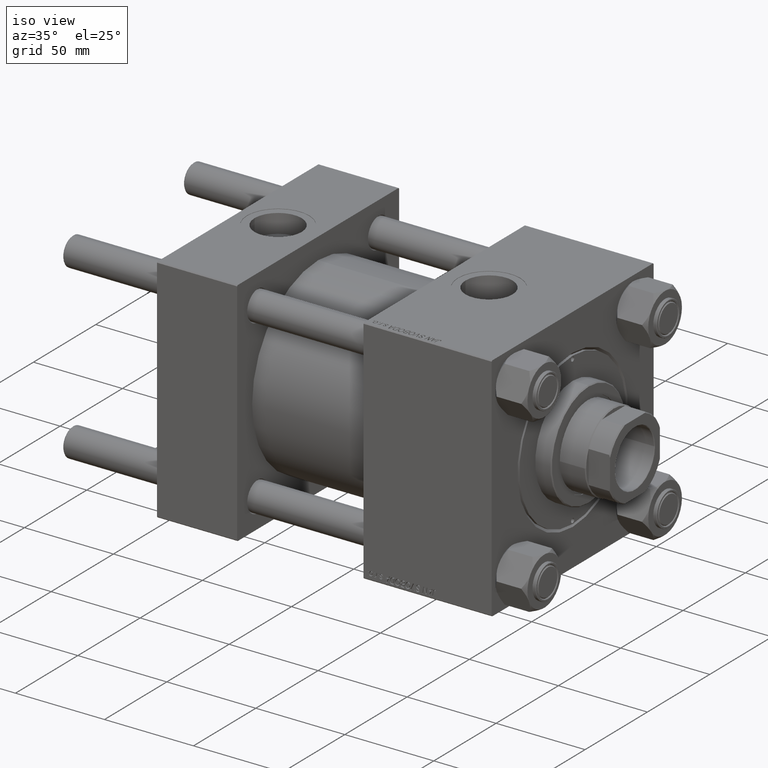
[diagram: clean part render]
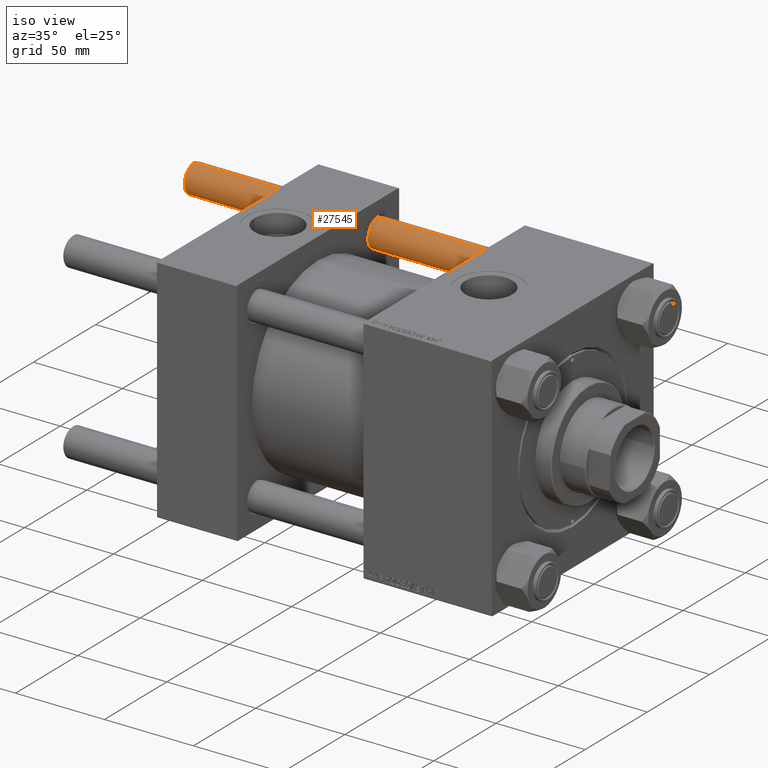
[diagram: same view with one face highlighted and labeled with its STEP entity id]
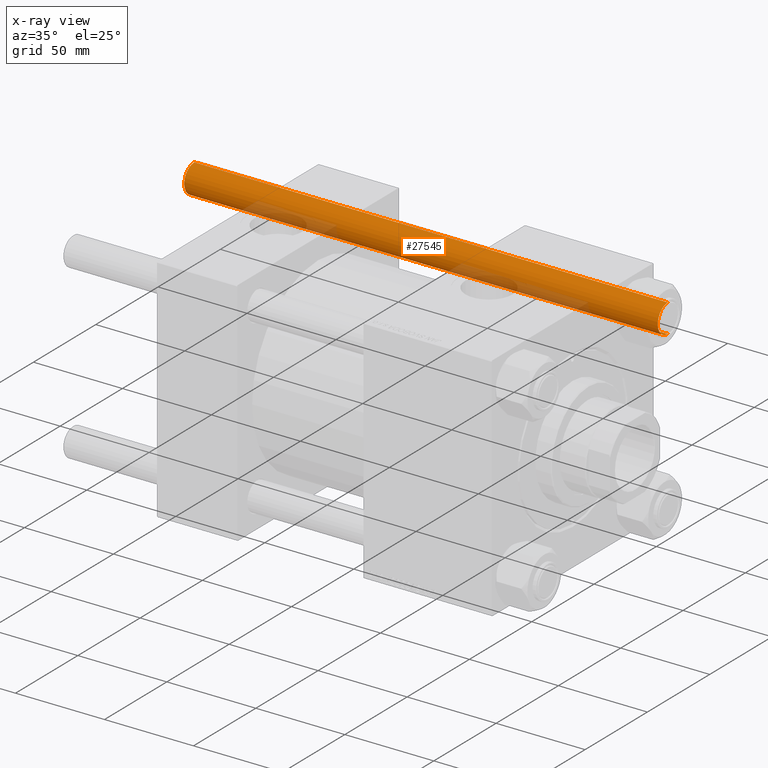
[diagram: x-ray of the same camera — body ghosted, the highlighted face saturated]
A machine part, iso view. The second image highlights one B-rep face of the part: STEP entity #27545.
The next image is the same camera in x-ray: the body ghosted, the highlighted face saturated — about 17% of this face is hidden behind the body in this view.
In plain terms, the highlighted cylindrical surface (edge-blend (fillet) strip) has radius 8 mm, axis along (-1, -0, -0).
Its self-contained STEP definition (entity closure, byte-faithful):
#737 = AXIS2_PLACEMENT_3D ( 'NONE', #40856, #36781, #41110 ) ;
#807 = VECTOR ( 'NONE', #22065, 1000.000000000000000 ) ;
#1186 = CYLINDRICAL_SURFACE ( 'NONE', #43241, 8.000000000000000000 ) ;
#1276 = EDGE_CURVE ( 'NONE', #46252, #44632, #30559, .T. ) ;
#3789 = EDGE_CURVE ( 'NONE', #34205, #46252, #48459, .T. ) ;
#4078 = VERTEX_POINT ( 'NONE', #42905 ) ;
#7635 = ORIENTED_EDGE ( 'NONE', *, *, #22350, .F. ) ;
#9077 = DIRECTION ( 'NONE',  ( -1.000000000000000000, 0.000000000000000000, 0.000000000000000000 ) ) ;
#13530 = ORIENTED_EDGE ( 'NONE', *, *, #1276, .T. ) ;
#20517 = EDGE_CURVE ( 'NONE', #44632, #4078, #42193, .T. ) ;
#20796 = AXIS2_PLACEMENT_3D ( 'NONE', #40737, #32841, #21391 ) ;
#21391 = DIRECTION ( 'NONE',  ( 1.000000000000000000, 0.000000000000000000, 0.000000000000000000 ) ) ;
#22065 = DIRECTION ( 'NONE',  ( -0.000000000000000000, -0.000000000000000000, -1.000000000000000000 ) ) ;
#22312 = CARTESIAN_POINT ( 'NONE',  ( 8.000000000000000000, 9.797174393178825657E-16, 267.0000000000000000 ) ) ;
#22350 = EDGE_CURVE ( 'NONE', #34205, #4078, #33270, .T. ) ;
#27545 = ADVANCED_FACE ( 'NONE', ( #36046 ), #1186, .T. ) ;
#30559 = LINE ( 'NONE', #37949, #32928 ) ;
#32234 = CARTESIAN_POINT ( 'NONE',  ( 0.000000000000000000, 0.000000000000000000, 267.0000000000000000 ) ) ;
#32841 = DIRECTION ( 'NONE',  ( 0.000000000000000000, 0.000000000000000000, -1.000000000000000000 ) ) ;
#32928 = VECTOR ( 'NONE', #38203, 1000.000000000000000 ) ;
#33270 = LINE ( 'NONE', #22312, #807 ) ;
#34205 = VERTEX_POINT ( 'NONE', #50136 ) ;
#36046 = FACE_OUTER_BOUND ( 'NONE', #41747, .T. ) ;
#36403 = CARTESIAN_POINT ( 'NONE',  ( -8.000000000000000000, 0.000000000000000000, 0.5000000000000559552 ) ) ;
#36781 = DIRECTION ( 'NONE',  ( -0.000000000000000000, -0.000000000000000000, 1.000000000000000000 ) ) ;
#37949 = CARTESIAN_POINT ( 'NONE',  ( -8.000000000000000000, 0.000000000000000000, 267.0000000000000000 ) ) ;
#38203 = DIRECTION ( 'NONE',  ( -0.000000000000000000, -0.000000000000000000, -1.000000000000000000 ) ) ;
#40347 = ORIENTED_EDGE ( 'NONE', *, *, #20517, .T. ) ;
#40737 = CARTESIAN_POINT ( 'NONE',  ( 0.000000000000000000, 0.000000000000000000, 266.5000000000000568 ) ) ;
#40856 = CARTESIAN_POINT ( 'NONE',  ( 0.000000000000000000, 0.000000000000000000, 0.5000000000000559552 ) ) ;
#41110 = DIRECTION ( 'NONE',  ( 1.000000000000000000, 0.000000000000000000, 0.000000000000000000 ) ) ;
#41747 = EDGE_LOOP ( 'NONE', ( #7635, #46888, #13530, #40347 ) ) ;
#42193 = CIRCLE ( 'NONE', #737, 8.000000000000000000 ) ;
#42905 = CARTESIAN_POINT ( 'NONE',  ( 8.000000000000000000, 9.797174393178825657E-16, 0.5000000000000559552 ) ) ;
#43241 = AXIS2_PLACEMENT_3D ( 'NONE', #32234, #47772, #9077 ) ;
#44632 = VERTEX_POINT ( 'NONE', #36403 ) ;
#46252 = VERTEX_POINT ( 'NONE', #46319 ) ;
#46319 = CARTESIAN_POINT ( 'NONE',  ( -8.000000000000000000, 0.000000000000000000, 266.5000000000000568 ) ) ;
#46888 = ORIENTED_EDGE ( 'NONE', *, *, #3789, .T. ) ;
#47772 = DIRECTION ( 'NONE',  ( -0.000000000000000000, -0.000000000000000000, -1.000000000000000000 ) ) ;
#48459 = CIRCLE ( 'NONE', #20796, 8.000000000000000000 ) ;
#50136 = CARTESIAN_POINT ( 'NONE',  ( 8.000000000000000000, 9.797174393178825657E-16, 266.5000000000000568 ) ) ;